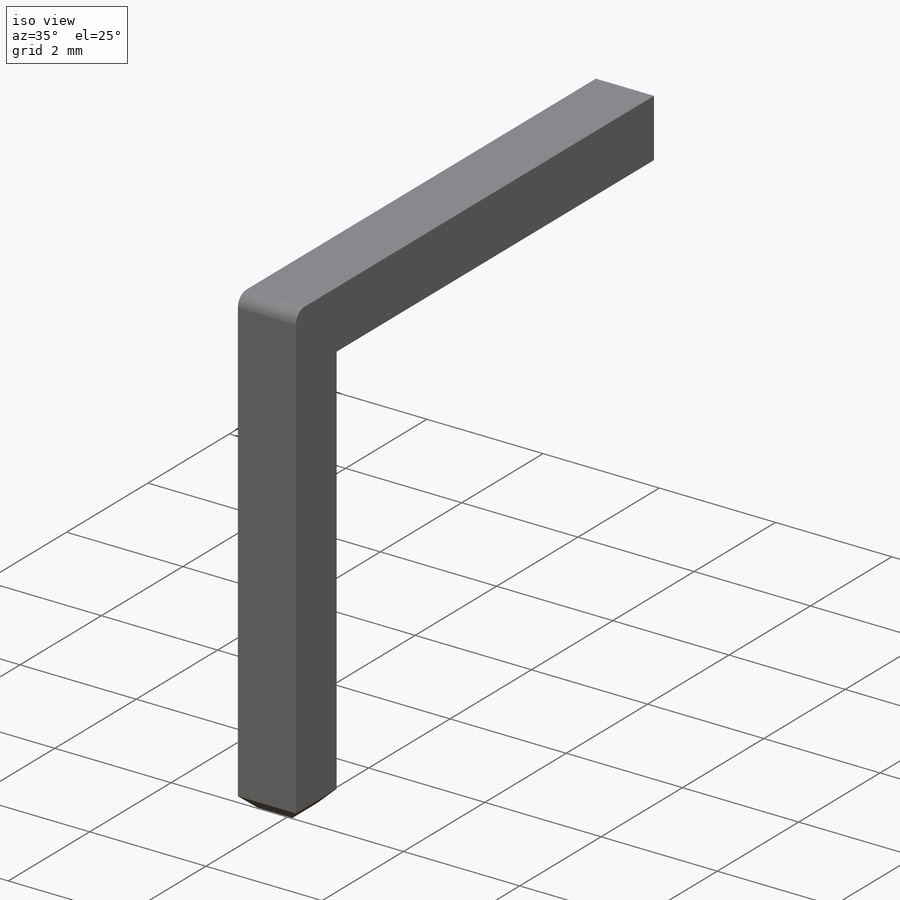
[diagram: iso view]
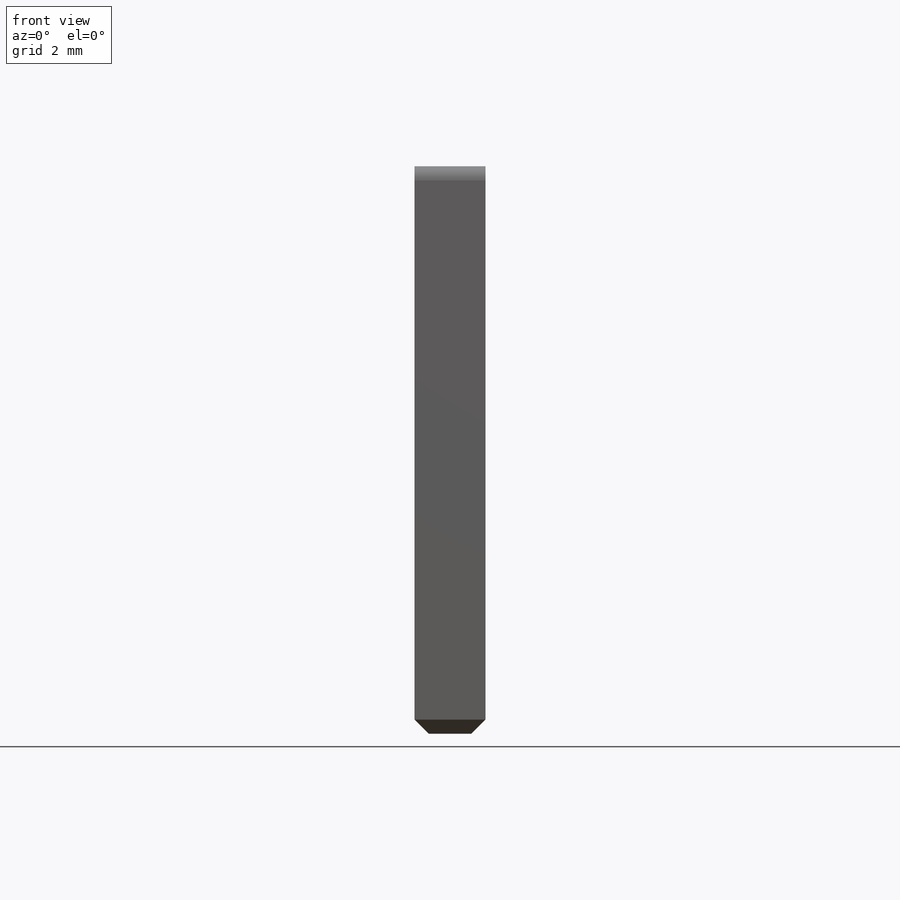
[diagram: front view]
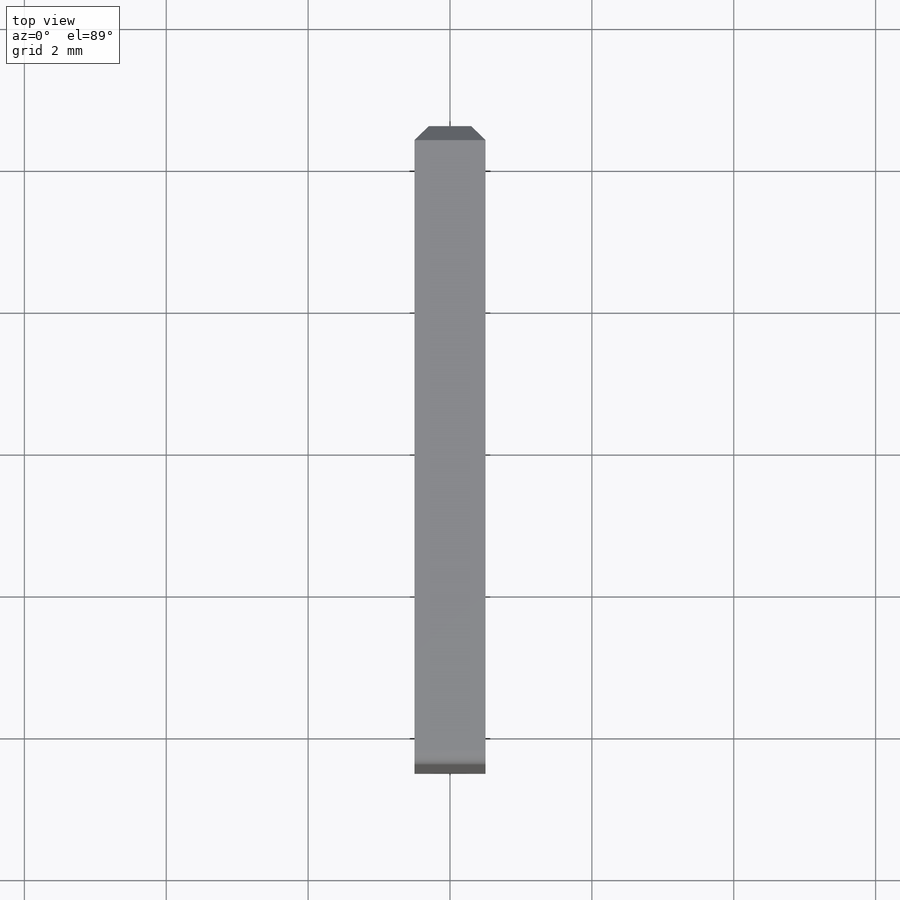
[diagram: top view]
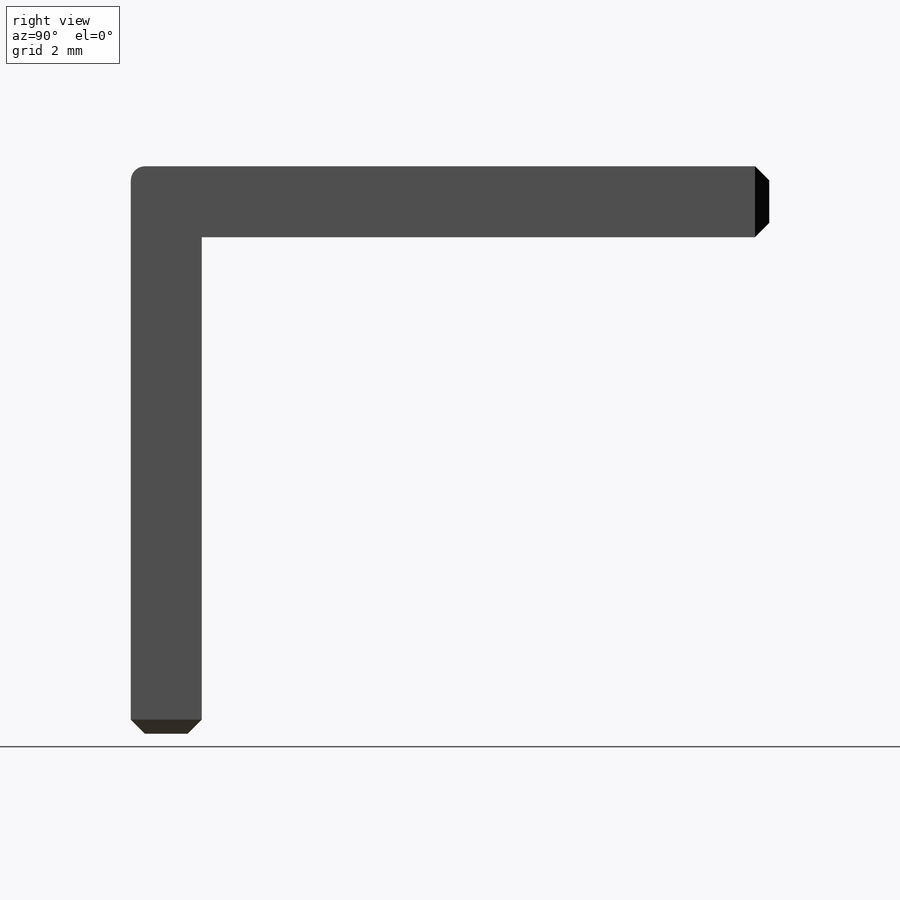
[diagram: right view]
SOLIDWORKS PART (.sldprt)
format: sldprt  version: not decoded by parser v0  size: 151,552 bytes
history: native  units: mm
features: sketch x2, extrude x2, chamfer x2, material x1, fillet x1 (+12 scaffold rows collapsed)
feature tree (20):
  scaffold x12  (default folders/planes/origin — collapsed)
  material  "1060 Alloy"
  sketch  "Sketch2"  dims[D1=1.0mm]
  extrude  "Boss-Extrude1"  Depth=8mm
  sketch  "Sketch3"  dims[D1=1.0mm]
  extrude  "Boss-Extrude2"  Depth=8mm
  fillet  "Fillet1"  Radius=0.2mm
  chamfer  "Chamfer1"  Distance=0.2mm Angle=45deg
  chamfer  "Chamfer2"  Distance=0.2mm Angle=45deg
decode coverage: 7 of 7 modeling features carry decoded parameters
note: suppression state not decoded; provenance and decode notes live in map.json
